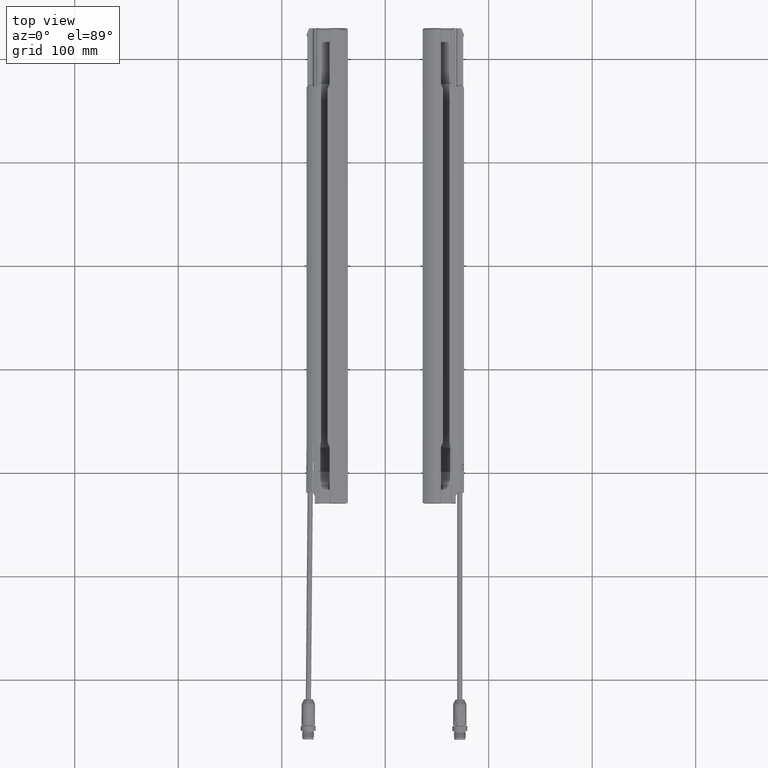
[diagram: clean part render]
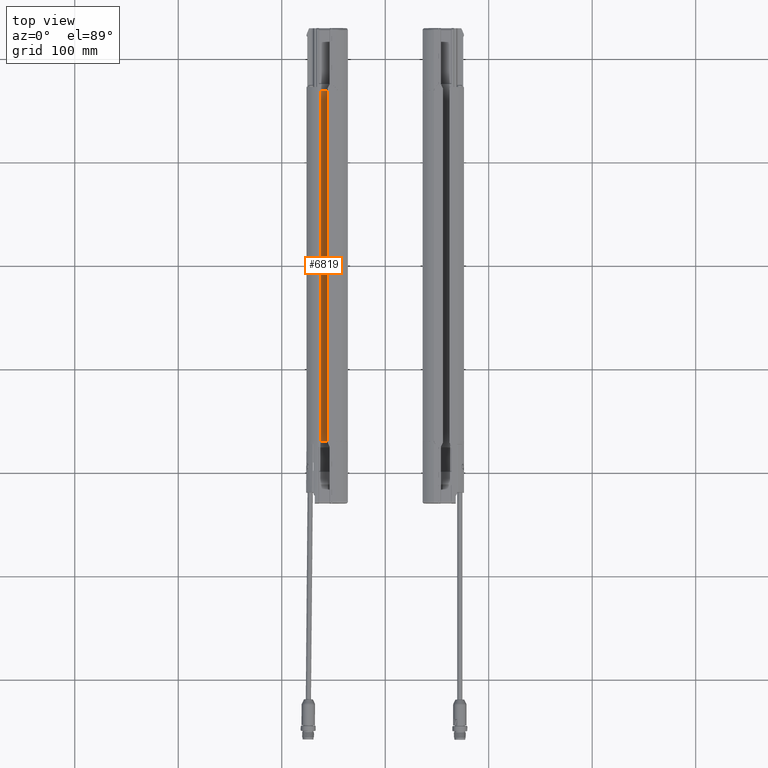
[diagram: same view with one face highlighted and labeled with its STEP entity id]
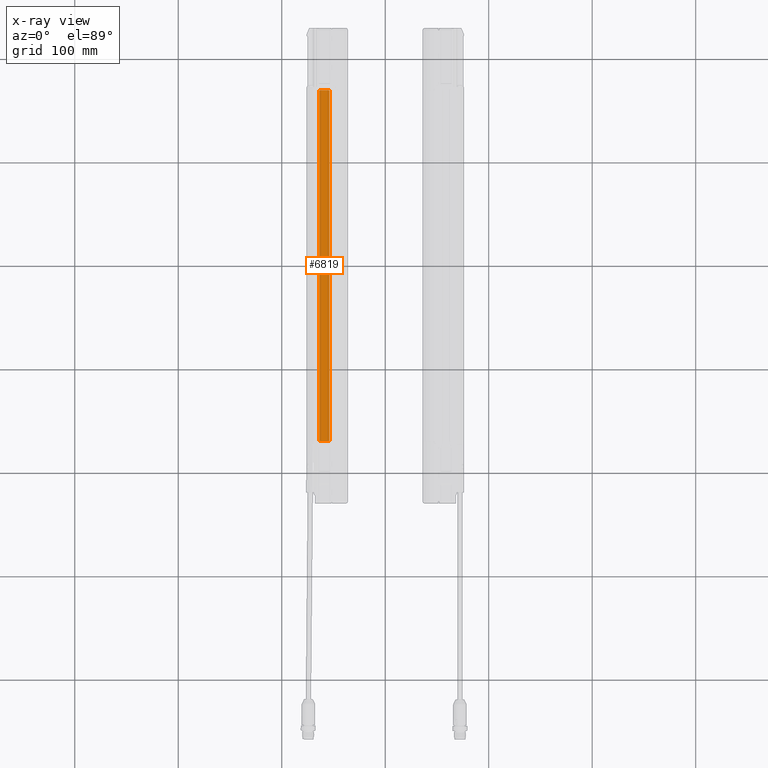
[diagram: x-ray of the same camera — body ghosted, the highlighted face saturated]
A machine part, top view. The second image highlights one B-rep face of the part: STEP entity #6819.
The next image is the same camera in x-ray: the body ghosted, the highlighted face saturated — about 0% of this face is hidden behind the body in this view.
In plain terms, the highlighted planar face has unit normal (0, 0.0003, 1).
Its self-contained STEP definition (entity closure, byte-faithful):
#266 = VECTOR ( 'NONE', #78522, 39.37007874015748854 ) ;
#3716 = VECTOR ( 'NONE', #36493, 39.37007874015748854 ) ;
#5598 = CARTESIAN_POINT ( 'NONE',  ( -2.120078740159366149, 123.2482049350891771, 0.4949409766604984107 ) ) ;
#6819 = ADVANCED_FACE ( 'NONE', ( #88940 ), #41587, .T. ) ;
#18680 = EDGE_CURVE ( 'NONE', #26801, #41315, #52398, .T. ) ;
#26164 = CARTESIAN_POINT ( 'NONE',  ( -2.523622047245976496, 123.2482049350891771, 0.4949409766604984107 ) ) ;
#26323 = EDGE_CURVE ( 'NONE', #69932, #69927, #29655, .T. ) ;
#26801 = VERTEX_POINT ( 'NONE', #75575 ) ;
#28123 = EDGE_CURVE ( 'NONE', #69932, #41315, #98254, .T. ) ;
#28599 = LINE ( 'NONE', #92406, #31924 ) ;
#29655 = LINE ( 'NONE', #52763, #266 ) ;
#30336 = ORIENTED_EDGE ( 'NONE', *, *, #18680, .T. ) ;
#31924 = VECTOR ( 'NONE', #62001, 39.37007874015748143 ) ;
#33380 = DIRECTION ( 'NONE',  ( 1.000000000000000000, -4.745499209035210898E-13, 0.000000000000000000 ) ) ;
#36493 = DIRECTION ( 'NONE',  ( -1.526111261793904519E-14, 0.9999999431153856477, -0.0003372969396878318913 ) ) ;
#41315 = VERTEX_POINT ( 'NONE', #86387 ) ;
#41587 = PLANE ( 'NONE',  #43636 ) ;
#43636 = AXIS2_PLACEMENT_3D ( 'NONE', #26164, #57975, #33380 ) ;
#46903 = ORIENTED_EDGE ( 'NONE', *, *, #28123, .F. ) ;
#47810 = EDGE_LOOP ( 'NONE', ( #46903, #90714, #95020, #30336 ) ) ;
#52398 = LINE ( 'NONE', #5598, #3716 ) ;
#52763 = CARTESIAN_POINT ( 'NONE',  ( -2.513779527560937144, 123.2482049350891771, 0.4949409766604984107 ) ) ;
#57975 = DIRECTION ( 'NONE',  ( 1.600642360498603511E-16, 0.0003372969396878318913, 0.9999999431153856477 ) ) ;
#59088 = DIRECTION ( 'NONE',  ( 1.000000000000000000, 1.526111348606050059E-14, -3.308098549828854648E-24 ) ) ;
#62001 = DIRECTION ( 'NONE',  ( -1.000000000000000000, -1.526111348606050059E-14, 3.308098549828854648E-24 ) ) ;
#66773 = VECTOR ( 'NONE', #59088, 39.37007874015748143 ) ;
#69927 = VERTEX_POINT ( 'NONE', #96680 ) ;
#69932 = VERTEX_POINT ( 'NONE', #72994 ) ;
#72994 = CARTESIAN_POINT ( 'NONE',  ( -2.513779527559161675, 6.673408416795570730, 0.5342613010075716318 ) ) ;
#75575 = CARTESIAN_POINT ( 'NONE',  ( -2.120078740157381958, -6.673047516909764276, 0.5387630200057678120 ) ) ;
#76104 = CARTESIAN_POINT ( 'NONE',  ( -2.996062992126090840, 6.673408416795570730, 0.5342613010075716318 ) ) ;
#78522 = DIRECTION ( 'NONE',  ( 1.526111261793904519E-14, -0.9999999431153856477, 0.0003372969396878318913 ) ) ;
#86387 = CARTESIAN_POINT ( 'NONE',  ( -2.120078740157586683, 6.673408416795590270, 0.5342613010075716318 ) ) ;
#88940 = FACE_OUTER_BOUND ( 'NONE', #47810, .T. ) ;
#90714 = ORIENTED_EDGE ( 'NONE', *, *, #26323, .T. ) ;
#92406 = CARTESIAN_POINT ( 'NONE',  ( -2.996062992125886115, -6.673047516909783816, 0.5387630200057678120 ) ) ;
#94490 = EDGE_CURVE ( 'NONE', #26801, #69927, #28599, .T. ) ;
#95020 = ORIENTED_EDGE ( 'NONE', *, *, #94490, .F. ) ;
#96680 = CARTESIAN_POINT ( 'NONE',  ( -2.513779527558956506, -6.673047516909764276, 0.5387630200057678120 ) ) ;
#98254 = LINE ( 'NONE', #76104, #66773 ) ;